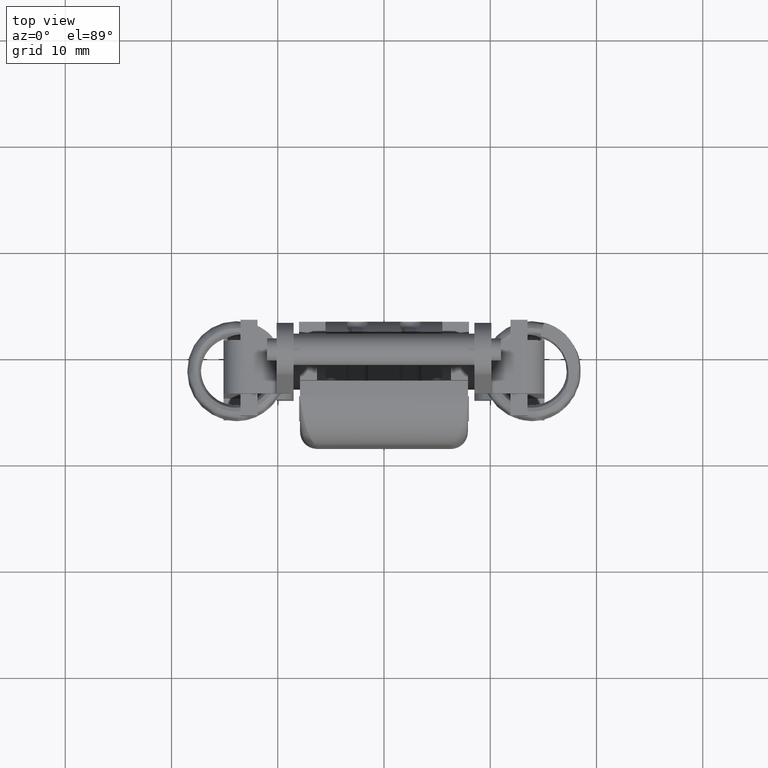
[diagram: clean part render]
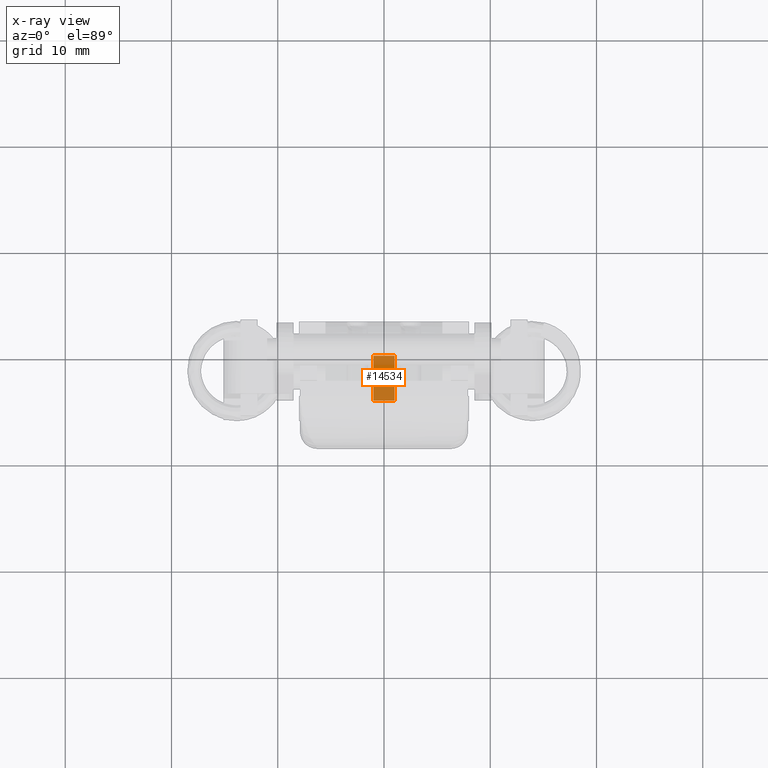
[diagram: x-ray — body ghosted, one internal face saturated and labeled with its STEP entity id]
A machine part, top view, then the same camera in x-ray: the body is ghosted and one INTERNAL B-rep face — a face not visible from any outside direction — is saturated and labeled: STEP entity #14534.
In plain terms, the highlighted face is a freeform B-spline surface patch.
Its self-contained STEP definition (entity closure, byte-faithful):
#9804=CARTESIAN_POINT('',(-0.137636627815056,-0.999999999999890,-26.655484120629101));
#9805=VERTEX_POINT('',#9804);
#9867=CARTESIAN_POINT('',(-4.384081250197700,-0.999999999999890,-23.993209140647149));
#9868=VERTEX_POINT('',#9867);
#9882=CARTESIAN_POINT('',(-0.137636627815056,-0.999999999999890,-26.655484120629101));
#9883=CARTESIAN_POINT('',(-4.384081250197700,-0.999999999999890,-23.993209140647149));
#9884=QUASI_UNIFORM_CURVE('',1,(#9882,#9883),.UNSPECIFIED.,.F.,.U.);
#9885=EDGE_CURVE('',#9805,#9868,#9884,.T.);
#10713=CARTESIAN_POINT('',(-0.137636627815056,0.999999999999890,-26.655484120629101));
#10714=VERTEX_POINT('',#10713);
#10838=CARTESIAN_POINT('',(-4.384081250197700,0.999999999999890,-23.993209140647149));
#10839=VERTEX_POINT('',#10838);
#10861=CARTESIAN_POINT('',(-0.137636627815056,0.999999999999890,-26.655484120629101));
#10862=CARTESIAN_POINT('',(-4.384081250197700,0.999999999999890,-23.993209140647149));
#10863=QUASI_UNIFORM_CURVE('',1,(#10861,#10862),.UNSPECIFIED.,.F.,.U.);
#10864=EDGE_CURVE('',#10714,#10839,#10863,.T.);
#14502=CARTESIAN_POINT('',(-0.137636627815056,-0.999999999999890,-26.655484120629101));
#14503=CARTESIAN_POINT('',(-0.137636627815056,0.999999999999890,-26.655484120629101));
#14504=QUASI_UNIFORM_CURVE('',1,(#14502,#14503),.UNSPECIFIED.,.F.,.U.);
#14505=EDGE_CURVE('',#9805,#10714,#14504,.T.);
#14519=CARTESIAN_POINT('',(-4.596190881337209,-1.099899996123491,-23.860228679529278));
#14520=CARTESIAN_POINT('',(0.074472737561251,-1.099899996123491,-26.788464415128800));
#14521=CARTESIAN_POINT('',(-4.596190881337209,1.099900049767671,-23.860228679529278));
#14522=CARTESIAN_POINT('',(0.074472737561251,1.099900049767671,-26.788464415128800));
#14523=B_SPLINE_SURFACE_WITH_KNOTS('',1,1,((#14519,#14521),(#14520,#14522)),.UNSPECIFIED.,.F.,.F.,.U.,(2,2),(2,2),(0.0,5.512682030023473),(0.0,2.199800045891162),.UNSPECIFIED.);
#14524=ORIENTED_EDGE('',*,*,#10864,.F.);
#14525=ORIENTED_EDGE('',*,*,#14505,.F.);
#14526=ORIENTED_EDGE('',*,*,#9885,.T.);
#14527=CARTESIAN_POINT('',(-4.384081250197700,-0.999999999999890,-23.993209140647149));
#14528=CARTESIAN_POINT('',(-4.384081250197700,0.999999999999890,-23.993209140647149));
#14529=QUASI_UNIFORM_CURVE('',1,(#14527,#14528),.UNSPECIFIED.,.F.,.U.);
#14530=EDGE_CURVE('',#9868,#10839,#14529,.T.);
#14531=ORIENTED_EDGE('',*,*,#14530,.T.);
#14532=EDGE_LOOP('',(#14524,#14525,#14526,#14531));
#14533=FACE_OUTER_BOUND('',#14532,.T.);
#14534=ADVANCED_FACE('',(#14533),#14523,.F.);